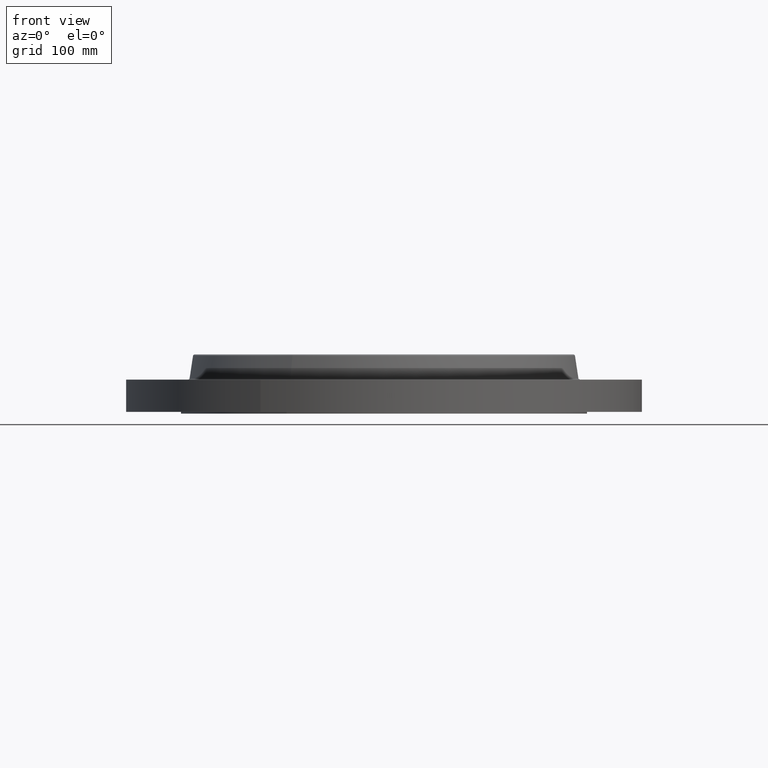
[diagram: clean part render]
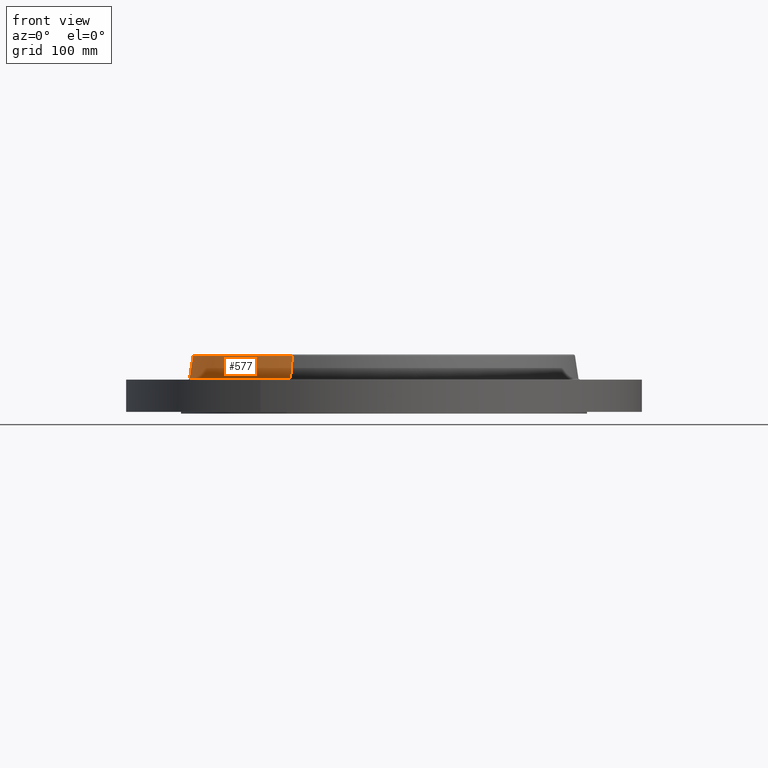
[diagram: same view with one face highlighted and labeled with its STEP entity id]
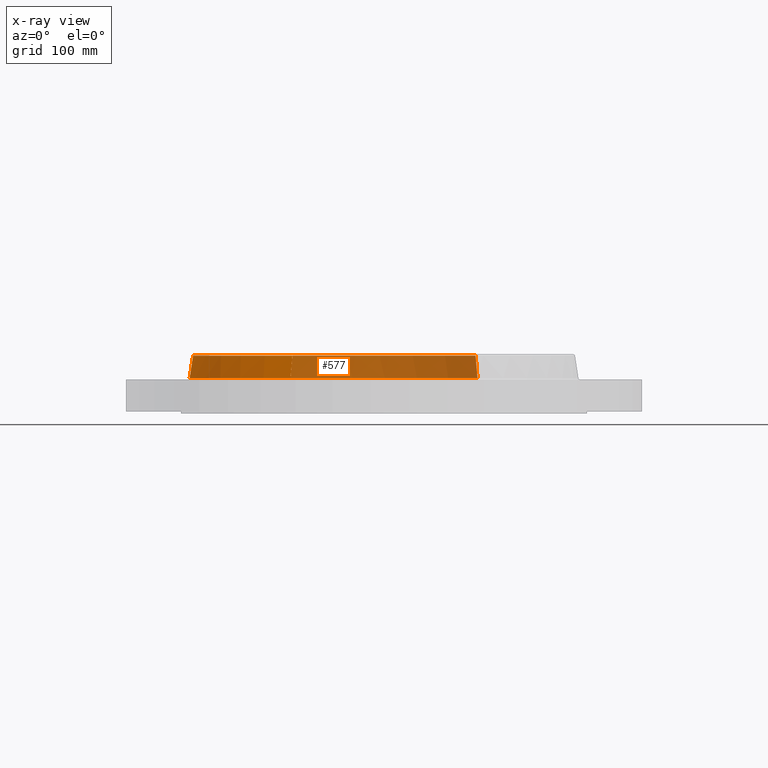
[diagram: x-ray of the same camera — body ghosted, the highlighted face saturated]
A machine part, front view. The second image highlights one B-rep face of the part: STEP entity #577.
The next image is the same camera in x-ray: the body ghosted, the highlighted face saturated — about 65% of this face is hidden behind the body in this view.
In plain terms, the highlighted conical surface has half-angle 10 deg.
Its self-contained STEP definition (entity closure, byte-faithful):
#525=AXIS2_PLACEMENT_3D('Circle Axis2P3D',#523,#524,$) ;
#538=AXIS2_PLACEMENT_3D('Cone Axis2P3D',#535,#536,#537) ;
#568=AXIS2_PLACEMENT_3D('Circle Axis2P3D',#566,#567,$) ;
#496=CARTESIAN_POINT('Vertex',(3.44287825089,6.30214636561,1.23958110934)) ;
#503=CARTESIAN_POINT('Vertex',(-3.44287825089,-6.30214636561,1.23958110934)) ;
#523=CARTESIAN_POINT('Axis2P3D Location',(0.,0.,1.23958110934)) ;
#535=CARTESIAN_POINT('Axis2P3D Location',(0.,0.,2.07041889067)) ;
#540=CARTESIAN_POINT('Line Origine',(3.40776054175,6.23786383021,1.65500000001)) ;
#544=CARTESIAN_POINT('Vertex',(3.37264283261,6.17358129481,2.07041889067)) ;
#551=CARTESIAN_POINT('Vertex',(-3.37264283261,-6.17358129481,2.07041889067)) ;
#554=CARTESIAN_POINT('Line Origine',(-3.40776054175,-6.23786383021,1.65500000001)) ;
#566=CARTESIAN_POINT('Axis2P3D Location',(0.,0.,2.07041889067)) ;
#524=DIRECTION('Axis2P3D Direction',(0.,0.,-0.0393700787402)) ;
#536=DIRECTION('Axis2P3D Direction',(0.,0.,-0.0393700787402)) ;
#537=DIRECTION('Axis2P3D XDirection',(-0.0188750212049,-0.0345504945626,0.)) ;
#541=DIRECTION('Vector Direction',(0.00327761303565,0.00599963041829,-0.03877195878)) ;
#555=DIRECTION('Vector Direction',(-0.00327761303565,-0.00599963041829,-0.03877195878)) ;
#567=DIRECTION('Axis2P3D Direction',(0.,0.,-0.0393700787402)) ;
#542=VECTOR('Line Direction',#541,0.0393700787402) ;
#556=VECTOR('Line Direction',#555,0.0393700787402) ;
#572=ORIENTED_EDGE('',*,*,#527,.F.) ;
#573=ORIENTED_EDGE('',*,*,#558,.T.) ;
#574=ORIENTED_EDGE('',*,*,#570,.T.) ;
#575=ORIENTED_EDGE('',*,*,#546,.F.) ;
#577=ADVANCED_FACE('PartBody',(#576),#539,.T.) ;
#526=CIRCLE('generated circle',#525,7.18125751272) ;
#569=CIRCLE('generated circle',#568,7.03475839528) ;
#539=CONICAL_SURFACE('Cone',#538,7.03475839528,0.174532925199) ;
#527=EDGE_CURVE('',#504,#497,#526,.T.) ;
#546=EDGE_CURVE('',#497,#545,#543,.F.) ;
#558=EDGE_CURVE('',#504,#552,#557,.F.) ;
#570=EDGE_CURVE('',#552,#545,#569,.T.) ;
#571=EDGE_LOOP('',(#572,#573,#574,#575)) ;
#576=FACE_OUTER_BOUND('',#571,.T.) ;
#543=LINE('Line',#540,#542) ;
#557=LINE('Line',#554,#556) ;
#497=VERTEX_POINT('',#496) ;
#504=VERTEX_POINT('',#503) ;
#545=VERTEX_POINT('',#544) ;
#552=VERTEX_POINT('',#551) ;